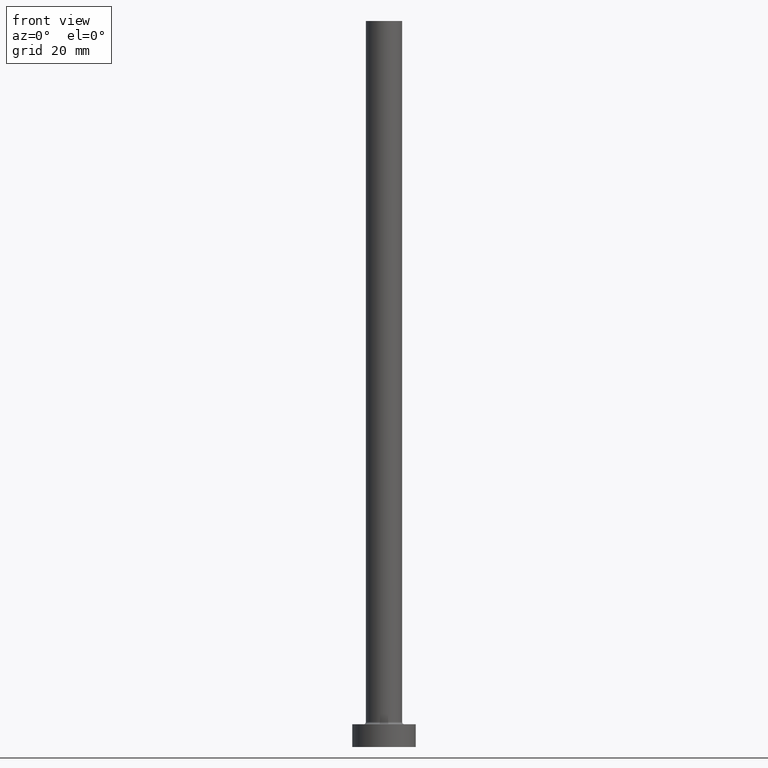
[diagram: clean part render]
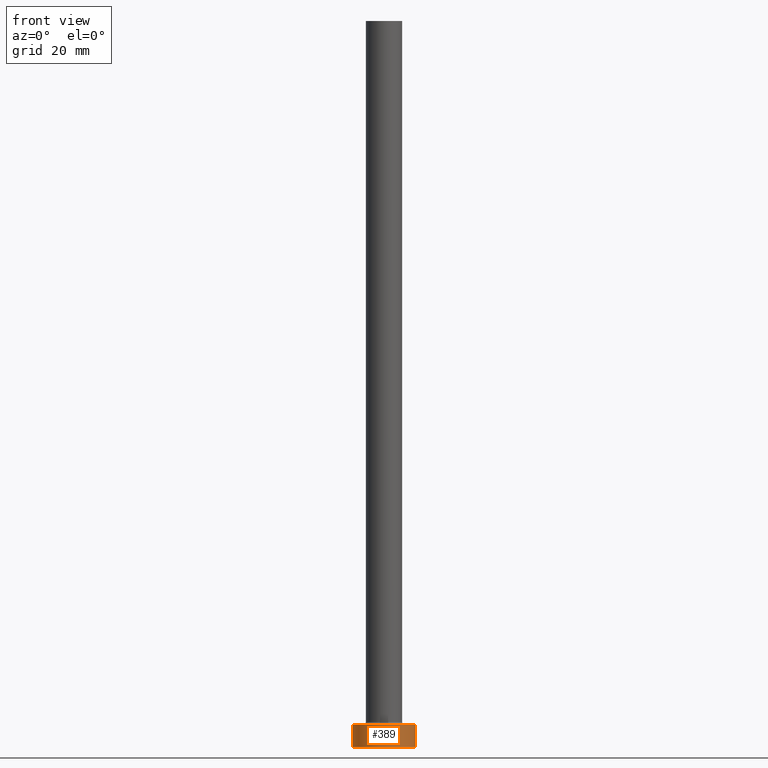
[diagram: same view with one face highlighted and labeled with its STEP entity id]
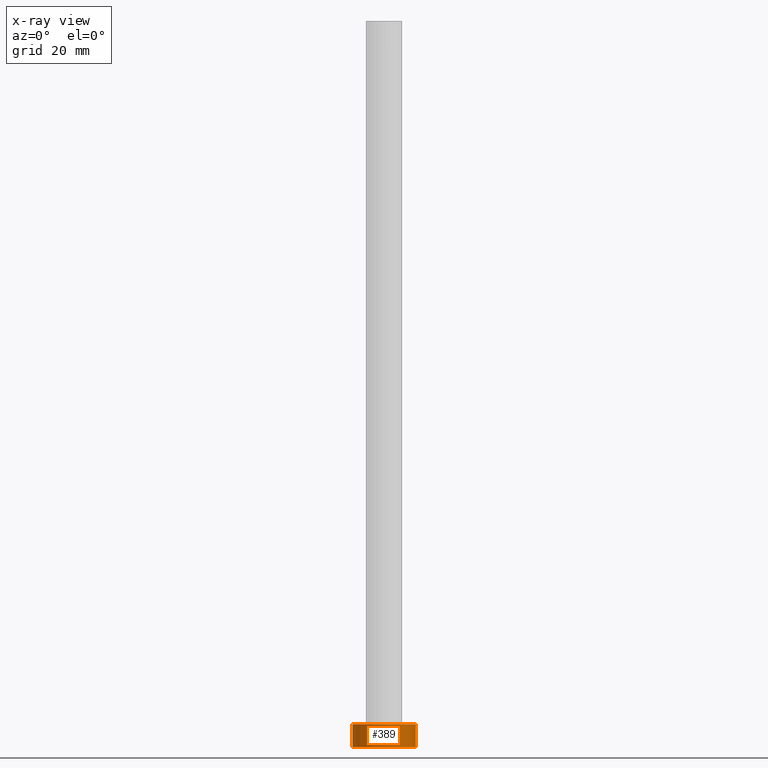
[diagram: x-ray of the same camera — body ghosted, the highlighted face saturated]
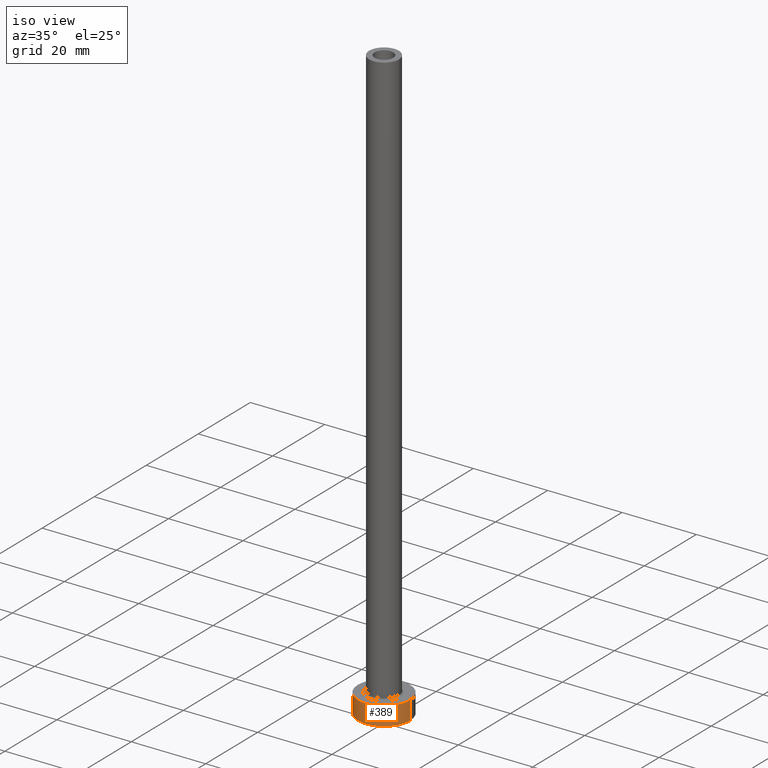
[diagram: same view with one face highlighted and labeled with its STEP entity id]
A machine part, front view. The second image highlights one B-rep face of the part: STEP entity #389.
The next image is the same camera in x-ray: the body ghosted, the highlighted face saturated — about 0% of this face is hidden behind the body in this view.
A second angle (iso view) of the same face is appended — the face is thin or edge-on in the first view.
In plain terms, the highlighted cylindrical surface (edge-blend (fillet) strip) has radius 7 mm, axis along (-0, -0, -1).
Its self-contained STEP definition (entity closure, byte-faithful):
#21 = CARTESIAN_POINT ( 'NONE',  ( 7.000000000000000000, 8.572527594031473190E-16, 0.000000000000000000 ) ) ;
#60 = CARTESIAN_POINT ( 'NONE',  ( 0.000000000000000000, 0.000000000000000000, 5.000000000000000000 ) ) ;
#86 = DIRECTION ( 'NONE',  ( 1.000000000000000000, 0.000000000000000000, 0.000000000000000000 ) ) ;
#99 = DIRECTION ( 'NONE',  ( -0.000000000000000000, -0.000000000000000000, -1.000000000000000000 ) ) ;
#119 = CARTESIAN_POINT ( 'NONE',  ( -7.000000000000000000, 0.000000000000000000, 5.000000000000000000 ) ) ;
#121 = EDGE_CURVE ( 'NONE', #201, #306, #429, .T. ) ;
#123 = CARTESIAN_POINT ( 'NONE',  ( -7.000000000000000000, 0.000000000000000000, 0.000000000000000000 ) ) ;
#124 = EDGE_LOOP ( 'NONE', ( #172, #415, #213, #446 ) ) ;
#161 = DIRECTION ( 'NONE',  ( -0.000000000000000000, -0.000000000000000000, -1.000000000000000000 ) ) ;
#164 = CARTESIAN_POINT ( 'NONE',  ( -7.000000000000000000, 0.000000000000000000, 5.000000000000000000 ) ) ;
#166 = DIRECTION ( 'NONE',  ( 1.000000000000000000, 0.000000000000000000, 0.000000000000000000 ) ) ;
#172 = ORIENTED_EDGE ( 'NONE', *, *, #121, .F. ) ;
#196 = LINE ( 'NONE', #164, #402 ) ;
#201 = VERTEX_POINT ( 'NONE', #336 ) ;
#203 = VERTEX_POINT ( 'NONE', #119 ) ;
#204 = FACE_OUTER_BOUND ( 'NONE', #124, .T. ) ;
#205 = VERTEX_POINT ( 'NONE', #123 ) ;
#213 = ORIENTED_EDGE ( 'NONE', *, *, #221, .T. ) ;
#221 = EDGE_CURVE ( 'NONE', #203, #205, #196, .T. ) ;
#226 = AXIS2_PLACEMENT_3D ( 'NONE', #413, #236, #86 ) ;
#236 = DIRECTION ( 'NONE',  ( 0.000000000000000000, 0.000000000000000000, 1.000000000000000000 ) ) ;
#244 = DIRECTION ( 'NONE',  ( -1.000000000000000000, 0.000000000000000000, 0.000000000000000000 ) ) ;
#268 = AXIS2_PLACEMENT_3D ( 'NONE', #60, #99, #244 ) ;
#272 = CIRCLE ( 'NONE', #226, 7.000000000000000000 ) ;
#296 = CIRCLE ( 'NONE', #365, 7.000000000000000000 ) ;
#306 = VERTEX_POINT ( 'NONE', #21 ) ;
#317 = EDGE_CURVE ( 'NONE', #205, #306, #272, .T. ) ;
#330 = CARTESIAN_POINT ( 'NONE',  ( 7.000000000000000000, 8.572527594031473190E-16, 5.000000000000000000 ) ) ;
#336 = CARTESIAN_POINT ( 'NONE',  ( 7.000000000000000000, 8.572527594031473190E-16, 5.000000000000000000 ) ) ;
#347 = VECTOR ( 'NONE', #361, 1000.000000000000000 ) ;
#361 = DIRECTION ( 'NONE',  ( -0.000000000000000000, -0.000000000000000000, -1.000000000000000000 ) ) ;
#365 = AXIS2_PLACEMENT_3D ( 'NONE', #384, #447, #166 ) ;
#381 = CYLINDRICAL_SURFACE ( 'NONE', #268, 7.000000000000000000 ) ;
#384 = CARTESIAN_POINT ( 'NONE',  ( 0.000000000000000000, 0.000000000000000000, 5.000000000000000000 ) ) ;
#389 = ADVANCED_FACE ( 'NONE', ( #204 ), #381, .T. ) ;
#402 = VECTOR ( 'NONE', #161, 1000.000000000000000 ) ;
#413 = CARTESIAN_POINT ( 'NONE',  ( 0.000000000000000000, 0.000000000000000000, 0.000000000000000000 ) ) ;
#415 = ORIENTED_EDGE ( 'NONE', *, *, #444, .F. ) ;
#429 = LINE ( 'NONE', #330, #347 ) ;
#444 = EDGE_CURVE ( 'NONE', #203, #201, #296, .T. ) ;
#446 = ORIENTED_EDGE ( 'NONE', *, *, #317, .T. ) ;
#447 = DIRECTION ( 'NONE',  ( 0.000000000000000000, 0.000000000000000000, 1.000000000000000000 ) ) ;